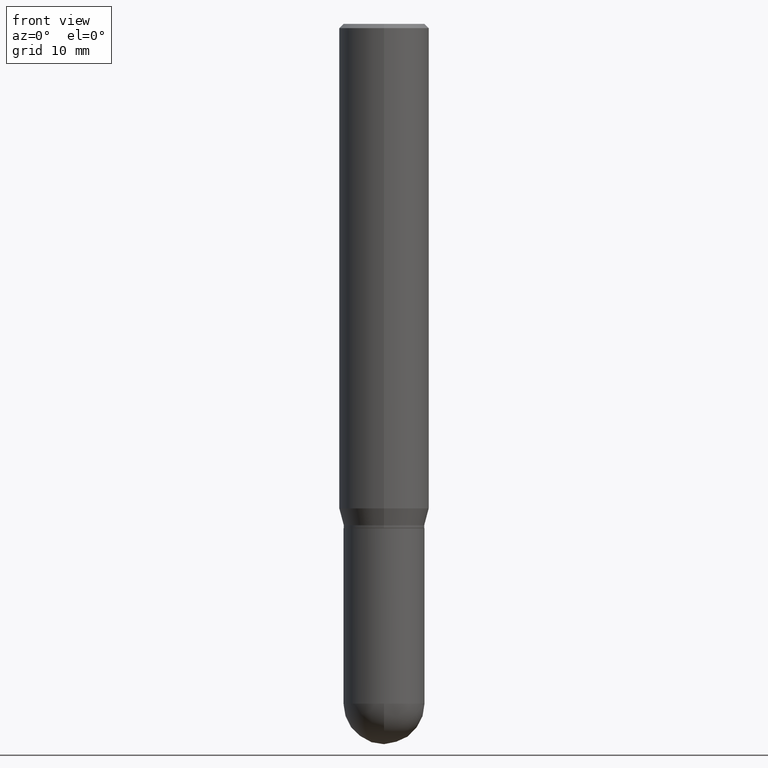
[diagram: clean part render]
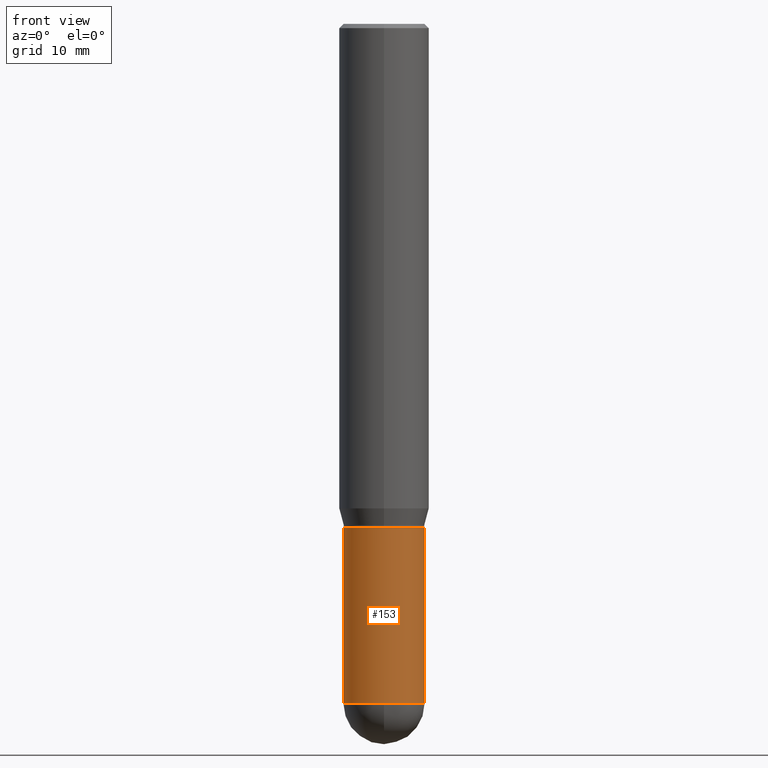
[diagram: same view with one face highlighted and labeled with its STEP entity id]
A machine part, front view. The second image highlights one B-rep face of the part: STEP entity #153.
In plain terms, the highlighted cylindrical surface (partial cylindrical patch) has radius 3.5712 mm, axis along (-0, 0, 1).
Its self-contained STEP definition (entity closure, byte-faithful):
#34 = CARTESIAN_POINT ( 'NONE',  ( 5.769839101313211634E-29, -8.237801070866517629E-15, -2.359399999999999942 ) ) ;
#41 = EDGE_CURVE ( 'NONE', #416, #62, #432, .T. ) ;
#52 = ORIENTED_EDGE ( 'NONE', *, *, #41, .T. ) ;
#62 = VERTEX_POINT ( 'NONE', #317 ) ;
#65 = EDGE_CURVE ( 'NONE', #187, #62, #363, .T. ) ;
#72 = CARTESIAN_POINT ( 'NONE',  ( 5.769839101313211634E-29, -8.237801070866517629E-15, -2.359399999999999942 ) ) ;
#117 = CARTESIAN_POINT ( 'NONE',  ( -0.1406000000000000583, -6.174923620442310269E-15, -2.359399999999999942 ) ) ;
#129 = DIRECTION ( 'NONE',  ( 1.000000000000000000, -6.982962677686270655E-15, 0.000000000000000000 ) ) ;
#130 = DIRECTION ( 'NONE',  ( -2.445468806185136597E-29, 3.491481338843145583E-15, 1.000000000000000000 ) ) ;
#144 = ORIENTED_EDGE ( 'NONE', *, *, #450, .T. ) ;
#146 = ORIENTED_EDGE ( 'NONE', *, *, #65, .F. ) ;
#153 = ADVANCED_FACE ( 'NONE', ( #372 ), #256, .T. ) ;
#154 = CARTESIAN_POINT ( 'NONE',  ( 0.1406000000000000583, -8.155751259403701439E-15, -2.359399999999999942 ) ) ;
#176 = ORIENTED_EDGE ( 'NONE', *, *, #333, .T. ) ;
#185 = DIRECTION ( 'NONE',  ( -2.445468806185136877E-29, 3.491481338843145188E-15, 1.000000000000000000 ) ) ;
#187 = VERTEX_POINT ( 'NONE', #499 ) ;
#195 = DIRECTION ( 'NONE',  ( 1.000000000000000000, -6.982962677686270655E-15, 0.000000000000000000 ) ) ;
#199 = VECTOR ( 'NONE', #185, 39.37007874015748143 ) ;
#201 = CIRCLE ( 'NONE', #489, 0.1406000000000000305 ) ;
#215 = DIRECTION ( 'NONE',  ( 1.000000000000000000, -6.982962677686268288E-15, 4.876176775795936353E-29 ) ) ;
#223 = CARTESIAN_POINT ( 'NONE',  ( -0.1406000000000000028, 9.990230864787008809E-16, -6.916022736898399140E-30 ) ) ;
#256 = CYLINDRICAL_SURFACE ( 'NONE', #307, 0.1406000000000000028 ) ;
#261 = AXIS2_PLACEMENT_3D ( 'NONE', #72, #398, #195 ) ;
#281 = VERTEX_POINT ( 'NONE', #385 ) ;
#297 = DIRECTION ( 'NONE',  ( -2.445468806185136597E-29, 3.491481338843145583E-15, 1.000000000000000000 ) ) ;
#304 = LINE ( 'NONE', #223, #460 ) ;
#307 = AXIS2_PLACEMENT_3D ( 'NONE', #337, #297, #215 ) ;
#311 = DIRECTION ( 'NONE',  ( -2.445468806185136597E-29, 3.491481338843145583E-15, 1.000000000000000000 ) ) ;
#317 = CARTESIAN_POINT ( 'NONE',  ( 0.1406000000000000028, -7.091896895458194566E-15, -1.750000000000000222 ) ) ;
#333 = EDGE_CURVE ( 'NONE', #361, #281, #510, .T. ) ;
#337 = CARTESIAN_POINT ( 'NONE',  ( 0.000000000000000000, 0.000000000000000000, 0.000000000000000000 ) ) ;
#356 = DIRECTION ( 'NONE',  ( 1.000000000000000000, -6.982962677686265133E-15, 0.000000000000000000 ) ) ;
#361 = VERTEX_POINT ( 'NONE', #117 ) ;
#363 = CIRCLE ( 'NONE', #495, 0.1406000000000000028 ) ;
#368 = EDGE_CURVE ( 'NONE', #361, #187, #304, .T. ) ;
#372 = FACE_OUTER_BOUND ( 'NONE', #465, .T. ) ;
#385 = CARTESIAN_POINT ( 'NONE',  ( -9.990230864786434913E-16, -0.1406000000000083017, -2.359399999999999498 ) ) ;
#386 = CARTESIAN_POINT ( 'NONE',  ( 0.1406000000000000028, -9.818045524826893030E-16, 6.855904546769086274E-30 ) ) ;
#390 = DIRECTION ( 'NONE',  ( -2.445468806185136877E-29, 3.491481338843145188E-15, 1.000000000000000000 ) ) ;
#398 = DIRECTION ( 'NONE',  ( -2.445468806185136597E-29, 3.491481338843145583E-15, 1.000000000000000000 ) ) ;
#416 = VERTEX_POINT ( 'NONE', #154 ) ;
#432 = LINE ( 'NONE', #386, #199 ) ;
#449 = ORIENTED_EDGE ( 'NONE', *, *, #368, .F. ) ;
#450 = EDGE_CURVE ( 'NONE', #281, #416, #201, .T. ) ;
#460 = VECTOR ( 'NONE', #390, 39.37007874015748143 ) ;
#465 = EDGE_LOOP ( 'NONE', ( #449, #176, #144, #52, #146 ) ) ;
#482 = CARTESIAN_POINT ( 'NONE',  ( 4.279570410823989044E-29, -6.110092342975505460E-15, -1.750000000000000222 ) ) ;
#489 = AXIS2_PLACEMENT_3D ( 'NONE', #34, #311, #129 ) ;
#495 = AXIS2_PLACEMENT_3D ( 'NONE', #482, #130, #356 ) ;
#499 = CARTESIAN_POINT ( 'NONE',  ( -0.1406000000000000028, -6.174923620442310269E-15, -1.750000000000000222 ) ) ;
#510 = CIRCLE ( 'NONE', #261, 0.1406000000000000305 ) ;